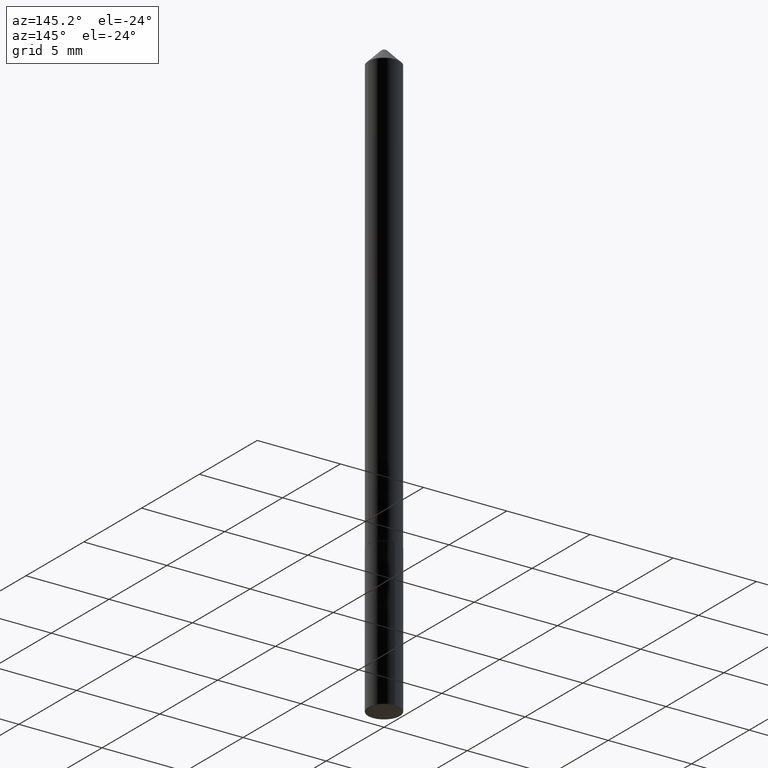
[diagram: clean part render]
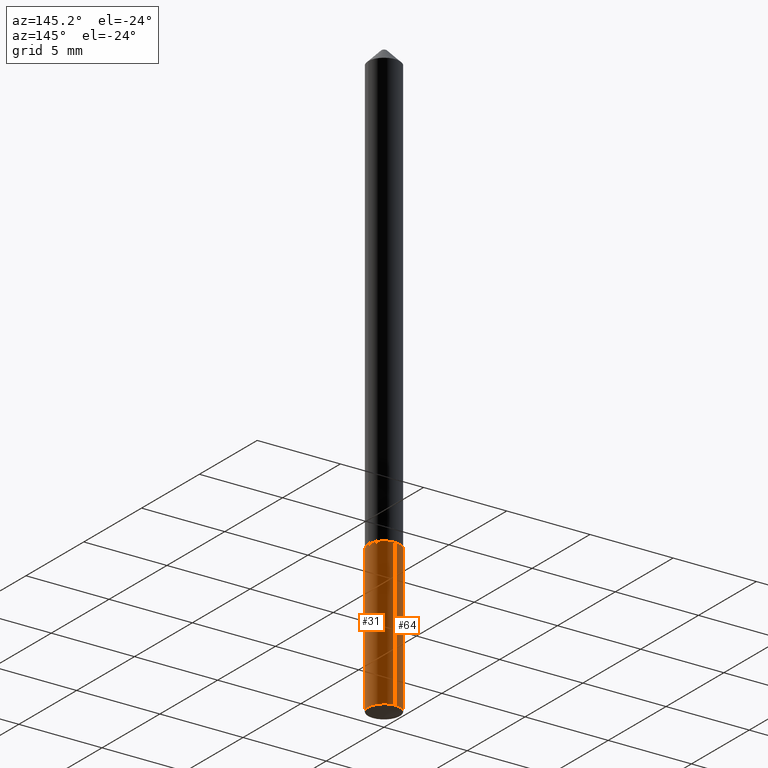
[diagram: same view with one multi-face feature highlighted, each face labeled with its STEP entity id]
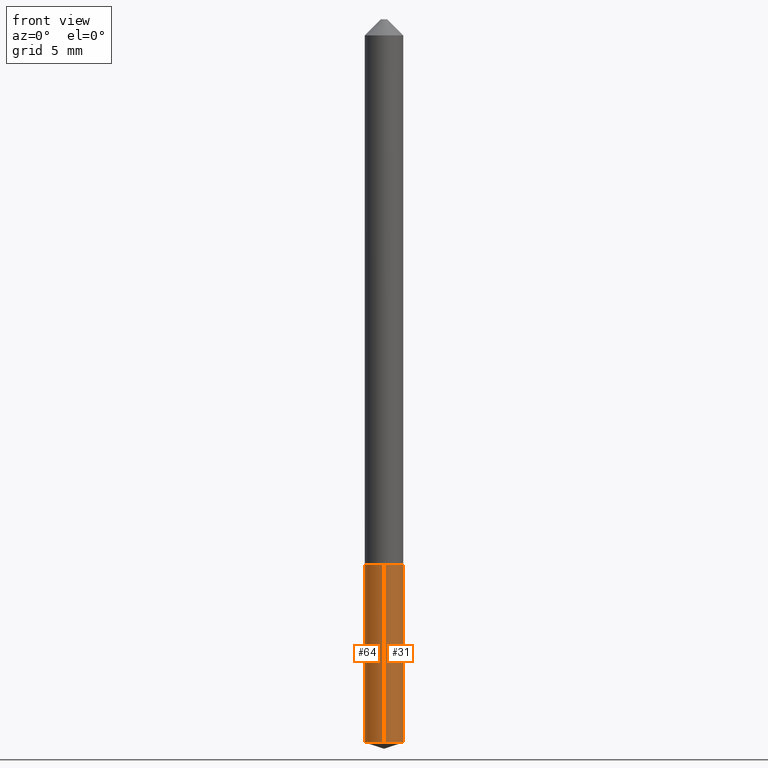
[diagram: same view with one multi-face feature highlighted, each face labeled with its STEP entity id]
A machine part, auxiliary view. The highlighted faces form ONE feature: a constant-radius fillet chain: 2 tangent blend faces with common blend radius 0.95 mm. The faces share edges in the B-rep.
A second angle (front view) of the same feature is appended — it is thin or edge-on in the first view.
Their STEP definitions:
[1] entity #31 (Cylinder):
#1 = VECTOR ( 'NONE', #14, 39.37007874015748143 ) ;
#4 = ORIENTED_EDGE ( 'NONE', *, *, #202, .F. ) ;
#14 = DIRECTION ( 'NONE',  ( -2.445349578750907731E-29, 3.491652079314965288E-15, 1.000000000000000000 ) ) ;
#31 = ADVANCED_FACE ( 'NONE', ( #136 ), #140, .T. ) ;
#32 = CIRCLE ( 'NONE', #108, 0.03739999999999999575 ) ;
#44 = LINE ( 'NONE', #83, #1 ) ;
#55 = DIRECTION ( 'NONE',  ( -2.445349578750907731E-29, 3.491652079314965682E-15, 1.000000000000000000 ) ) ;
#58 = EDGE_CURVE ( 'NONE', #271, #212, #32, .T. ) ;
#62 = ORIENTED_EDGE ( 'NONE', *, *, #201, .F. ) ;
#66 = EDGE_CURVE ( 'NONE', #212, #185, #44, .T. ) ;
#79 = DIRECTION ( 'NONE',  ( -6.982962677686265922E-15, -1.000000000000000000, 3.652203200085913145E-15 ) ) ;
#83 = CARTESIAN_POINT ( 'NONE',  ( 2.657429831743033238E-16, 0.03739999999999630426, -1.059000000000000163 ) ) ;
#97 = CARTESIAN_POINT ( 'NONE',  ( -2.611628041454319369E-16, -0.03740000000000490155, -1.405507825295926105 ) ) ;
#98 = EDGE_LOOP ( 'NONE', ( #161, #214, #62, #4 ) ) ;
#108 = AXIS2_PLACEMENT_3D ( 'NONE', #171, #317, #348 ) ;
#132 = CIRCLE ( 'NONE', #291, 0.03740000000000000269 ) ;
#136 = FACE_OUTER_BOUND ( 'NONE', #98, .T. ) ;
#140 = CYLINDRICAL_SURFACE ( 'NONE', #345, 0.03739999999999999575 ) ;
#149 = CARTESIAN_POINT ( 'NONE',  ( -2.611628041454404664E-16, -0.03740000000000370112, -1.058999999999999719 ) ) ;
#161 = ORIENTED_EDGE ( 'NONE', *, *, #58, .T. ) ;
#171 = CARTESIAN_POINT ( 'NONE',  ( 3.437084230371345260E-29, -4.907363506528318895E-15, -1.405507825295926105 ) ) ;
#185 = VERTEX_POINT ( 'NONE', #187 ) ;
#187 = CARTESIAN_POINT ( 'NONE',  ( 2.657429831743119027E-16, 0.03739999999999631120, -1.059000000000000163 ) ) ;
#191 = DIRECTION ( 'NONE',  ( -6.982962677686265922E-15, -1.000000000000000000, 3.652203200085913934E-15 ) ) ;
#201 = EDGE_CURVE ( 'NONE', #246, #185, #132, .T. ) ;
#202 = EDGE_CURVE ( 'NONE', #271, #246, #365, .T. ) ;
#212 = VERTEX_POINT ( 'NONE', #236 ) ;
#213 = DIRECTION ( 'NONE',  ( -2.445349578750907731E-29, 3.491652079314965288E-15, 1.000000000000000000 ) ) ;
#214 = ORIENTED_EDGE ( 'NONE', *, *, #66, .T. ) ;
#236 = CARTESIAN_POINT ( 'NONE',  ( 2.657429831743117548E-16, 0.03739999999999508301, -1.405507825295926105 ) ) ;
#245 = CARTESIAN_POINT ( 'NONE',  ( -2.611628041454404171E-16, -0.03740000000000369418, -1.058999999999999719 ) ) ;
#246 = VERTEX_POINT ( 'NONE', #149 ) ;
#255 = CARTESIAN_POINT ( 'NONE',  ( 2.589751465750059705E-29, -3.697478737834891287E-15, -1.058999999999999941 ) ) ;
#271 = VERTEX_POINT ( 'NONE', #97 ) ;
#291 = AXIS2_PLACEMENT_3D ( 'NONE', #314, #346, #79 ) ;
#314 = CARTESIAN_POINT ( 'NONE',  ( 2.589751465750059705E-29, -3.697478737834891287E-15, -1.058999999999999941 ) ) ;
#317 = DIRECTION ( 'NONE',  ( -2.445349578750907731E-29, 3.491652079314965682E-15, 1.000000000000000000 ) ) ;
#345 = AXIS2_PLACEMENT_3D ( 'NONE', #255, #55, #191 ) ;
#346 = DIRECTION ( 'NONE',  ( -2.445349578750907731E-29, 3.491652079314965682E-15, 1.000000000000000000 ) ) ;
#348 = DIRECTION ( 'NONE',  ( -6.982962677686265922E-15, -1.000000000000000000, 0.000000000000000000 ) ) ;
#365 = LINE ( 'NONE', #245, #386 ) ;
#386 = VECTOR ( 'NONE', #213, 39.37007874015748143 ) ;
[2] entity #64 (Cylinder):
#1 = VECTOR ( 'NONE', #14, 39.37007874015748143 ) ;
#14 = DIRECTION ( 'NONE',  ( -2.445349578750907731E-29, 3.491652079314965288E-15, 1.000000000000000000 ) ) ;
#17 = CARTESIAN_POINT ( 'NONE',  ( 3.437084230371345260E-29, -4.907363506528318895E-15, -1.405507825295926105 ) ) ;
#21 = DIRECTION ( 'NONE',  ( -2.445349578750907731E-29, 3.491652079314965682E-15, 1.000000000000000000 ) ) ;
#27 = EDGE_CURVE ( 'NONE', #212, #271, #380, .T. ) ;
#44 = LINE ( 'NONE', #83, #1 ) ;
#46 = DIRECTION ( 'NONE',  ( -6.982962677686265922E-15, -1.000000000000000000, 0.000000000000000000 ) ) ;
#51 = CARTESIAN_POINT ( 'NONE',  ( 2.589751465750059705E-29, -3.697478737834891287E-15, -1.058999999999999941 ) ) ;
#64 = ADVANCED_FACE ( 'NONE', ( #251 ), #320, .T. ) ;
#66 = EDGE_CURVE ( 'NONE', #212, #185, #44, .T. ) ;
#77 = CARTESIAN_POINT ( 'NONE',  ( 2.589751465750059705E-29, -3.697478737834891287E-15, -1.058999999999999941 ) ) ;
#83 = CARTESIAN_POINT ( 'NONE',  ( 2.657429831743033238E-16, 0.03739999999999630426, -1.059000000000000163 ) ) ;
#88 = DIRECTION ( 'NONE',  ( -2.445349578750907731E-29, 3.491652079314965682E-15, 1.000000000000000000 ) ) ;
#97 = CARTESIAN_POINT ( 'NONE',  ( -2.611628041454319369E-16, -0.03740000000000490155, -1.405507825295926105 ) ) ;
#126 = CIRCLE ( 'NONE', #158, 0.03740000000000000269 ) ;
#142 = DIRECTION ( 'NONE',  ( -6.982962677686265922E-15, -1.000000000000000000, 3.652203200085913934E-15 ) ) ;
#149 = CARTESIAN_POINT ( 'NONE',  ( -2.611628041454404664E-16, -0.03740000000000370112, -1.058999999999999719 ) ) ;
#153 = ORIENTED_EDGE ( 'NONE', *, *, #303, .F. ) ;
#157 = AXIS2_PLACEMENT_3D ( 'NONE', #51, #21, #142 ) ;
#158 = AXIS2_PLACEMENT_3D ( 'NONE', #77, #88, #198 ) ;
#162 = ORIENTED_EDGE ( 'NONE', *, *, #27, .T. ) ;
#181 = ORIENTED_EDGE ( 'NONE', *, *, #202, .T. ) ;
#185 = VERTEX_POINT ( 'NONE', #187 ) ;
#187 = CARTESIAN_POINT ( 'NONE',  ( 2.657429831743119027E-16, 0.03739999999999631120, -1.059000000000000163 ) ) ;
#198 = DIRECTION ( 'NONE',  ( -6.982962677686265922E-15, -1.000000000000000000, 3.652203200085913145E-15 ) ) ;
#202 = EDGE_CURVE ( 'NONE', #271, #246, #365, .T. ) ;
#212 = VERTEX_POINT ( 'NONE', #236 ) ;
#213 = DIRECTION ( 'NONE',  ( -2.445349578750907731E-29, 3.491652079314965288E-15, 1.000000000000000000 ) ) ;
#236 = CARTESIAN_POINT ( 'NONE',  ( 2.657429831743117548E-16, 0.03739999999999508301, -1.405507825295926105 ) ) ;
#245 = CARTESIAN_POINT ( 'NONE',  ( -2.611628041454404171E-16, -0.03740000000000369418, -1.058999999999999719 ) ) ;
#246 = VERTEX_POINT ( 'NONE', #149 ) ;
#251 = FACE_OUTER_BOUND ( 'NONE', #330, .T. ) ;
#256 = DIRECTION ( 'NONE',  ( -2.445349578750907731E-29, 3.491652079314965682E-15, 1.000000000000000000 ) ) ;
#271 = VERTEX_POINT ( 'NONE', #97 ) ;
#300 = ORIENTED_EDGE ( 'NONE', *, *, #66, .F. ) ;
#303 = EDGE_CURVE ( 'NONE', #185, #246, #126, .T. ) ;
#320 = CYLINDRICAL_SURFACE ( 'NONE', #157, 0.03739999999999999575 ) ;
#330 = EDGE_LOOP ( 'NONE', ( #300, #162, #181, #153 ) ) ;
#341 = AXIS2_PLACEMENT_3D ( 'NONE', #17, #256, #46 ) ;
#365 = LINE ( 'NONE', #245, #386 ) ;
#380 = CIRCLE ( 'NONE', #341, 0.03739999999999999575 ) ;
#386 = VECTOR ( 'NONE', #213, 39.37007874015748143 ) ;